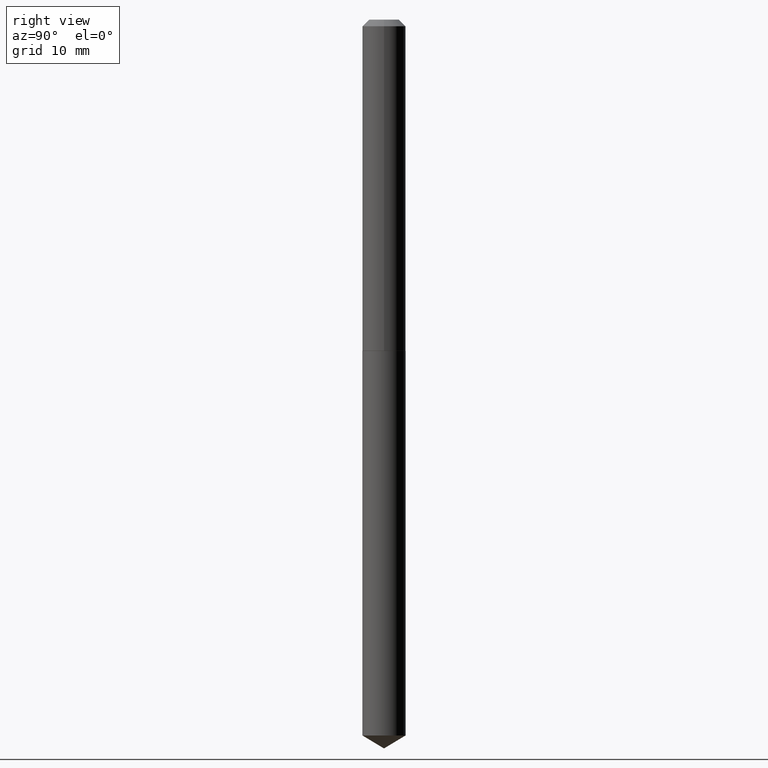
[diagram: clean part render]
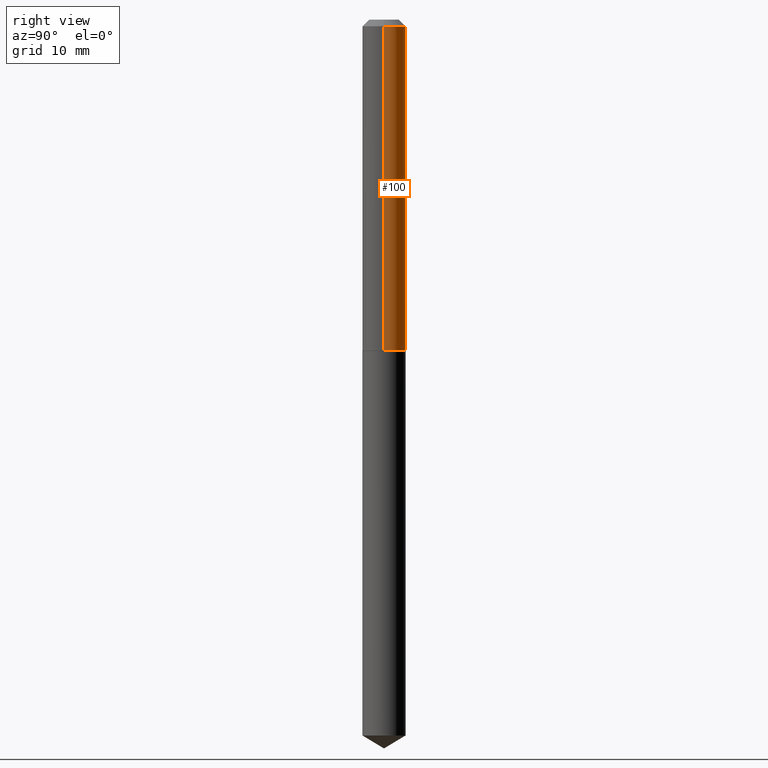
[diagram: same view with one face highlighted and labeled with its STEP entity id]
A machine part, right view. The second image highlights one B-rep face of the part: STEP entity #100.
In plain terms, the highlighted cylindrical surface (edge-blend (fillet) strip) has radius 2.5502 mm, axis along (-0, 0, 1).
Its self-contained STEP definition (entity closure, byte-faithful):
#4 = VERTEX_POINT ( 'NONE', #136 ) ;
#8 = DIRECTION ( 'NONE',  ( -2.445468806185136877E-29, 3.491481338843145188E-15, 1.000000000000000000 ) ) ;
#19 = CARTESIAN_POINT ( 'NONE',  ( -0.1004000000000001835, -4.659655725642575772E-15, -1.538900000000000379 ) ) ;
#24 = CARTESIAN_POINT ( 'NONE',  ( -0.1004000000000000864, 7.133849067031412005E-16, -4.938610830615929898E-30 ) ) ;
#26 = CARTESIAN_POINT ( 'NONE',  ( 7.642090019328602662E-31, -1.091087918388490267E-16, -0.03125000000000020817 ) ) ;
#29 = DIRECTION ( 'NONE',  ( -2.445468806185136597E-29, 3.491481338843145583E-15, 1.000000000000000000 ) ) ;
#30 = EDGE_CURVE ( 'NONE', #124, #69, #66, .T. ) ;
#56 = EDGE_CURVE ( 'NONE', #69, #72, #169, .T. ) ;
#61 = AXIS2_PLACEMENT_3D ( 'NONE', #26, #29, #149 ) ;
#66 = CIRCLE ( 'NONE', #245, 0.1004000000000001835 ) ;
#69 = VERTEX_POINT ( 'NONE', #19 ) ;
#72 = VERTEX_POINT ( 'NONE', #138 ) ;
#73 = DIRECTION ( 'NONE',  ( 1.000000000000000000, -6.982962677686266711E-15, 4.876176775795936353E-29 ) ) ;
#100 = ADVANCED_FACE ( 'NONE', ( #260 ), #262, .T. ) ;
#114 = DIRECTION ( 'NONE',  ( -2.445468806185136597E-29, 3.491481338843145583E-15, 1.000000000000000000 ) ) ;
#124 = VERTEX_POINT ( 'NONE', #329 ) ;
#136 = CARTESIAN_POINT ( 'NONE',  ( 0.1004000000000000031, -8.101982446785502760E-16, -0.03125000000000020817 ) ) ;
#138 = CARTESIAN_POINT ( 'NONE',  ( -0.1004000000000000031, -2.027689805389141589E-15, -0.03125000000000020817 ) ) ;
#139 = CIRCLE ( 'NONE', #61, 0.1004000000000000031 ) ;
#149 = DIRECTION ( 'NONE',  ( 1.000000000000000000, -6.982962677686266711E-15, 0.000000000000000000 ) ) ;
#157 = CARTESIAN_POINT ( 'NONE',  ( 0.1004000000000000864, -7.010894528397017670E-16, 4.895681482899124059E-30 ) ) ;
#158 = ORIENTED_EDGE ( 'NONE', *, *, #56, .T. ) ;
#169 = LINE ( 'NONE', #24, #224 ) ;
#179 = VECTOR ( 'NONE', #8, 39.37007874015748143 ) ;
#221 = ORIENTED_EDGE ( 'NONE', *, *, #273, .F. ) ;
#223 = EDGE_LOOP ( 'NONE', ( #307, #158, #221, #311 ) ) ;
#224 = VECTOR ( 'NONE', #255, 39.37007874015748143 ) ;
#233 = CARTESIAN_POINT ( 'NONE',  ( 0.000000000000000000, 0.000000000000000000, 0.000000000000000000 ) ) ;
#234 = DIRECTION ( 'NONE',  ( 1.000000000000000000, -6.982962677686269866E-15, 0.000000000000000000 ) ) ;
#236 = CARTESIAN_POINT ( 'NONE',  ( 3.763331945838307250E-29, -5.373040632345718254E-15, -1.538900000000000379 ) ) ;
#245 = AXIS2_PLACEMENT_3D ( 'NONE', #236, #114, #234 ) ;
#255 = DIRECTION ( 'NONE',  ( -2.445468806185136877E-29, 3.491481338843145188E-15, 1.000000000000000000 ) ) ;
#260 = FACE_OUTER_BOUND ( 'NONE', #223, .T. ) ;
#262 = CYLINDRICAL_SURFACE ( 'NONE', #358, 0.1004000000000000864 ) ;
#273 = EDGE_CURVE ( 'NONE', #4, #72, #139, .T. ) ;
#307 = ORIENTED_EDGE ( 'NONE', *, *, #30, .T. ) ;
#310 = LINE ( 'NONE', #157, #179 ) ;
#311 = ORIENTED_EDGE ( 'NONE', *, *, #377, .F. ) ;
#329 = CARTESIAN_POINT ( 'NONE',  ( 0.1004000000000001835, -6.074130085185420909E-15, -1.538900000000000379 ) ) ;
#353 = DIRECTION ( 'NONE',  ( -2.445468806185136597E-29, 3.491481338843145583E-15, 1.000000000000000000 ) ) ;
#358 = AXIS2_PLACEMENT_3D ( 'NONE', #233, #353, #73 ) ;
#377 = EDGE_CURVE ( 'NONE', #124, #4, #310, .T. ) ;